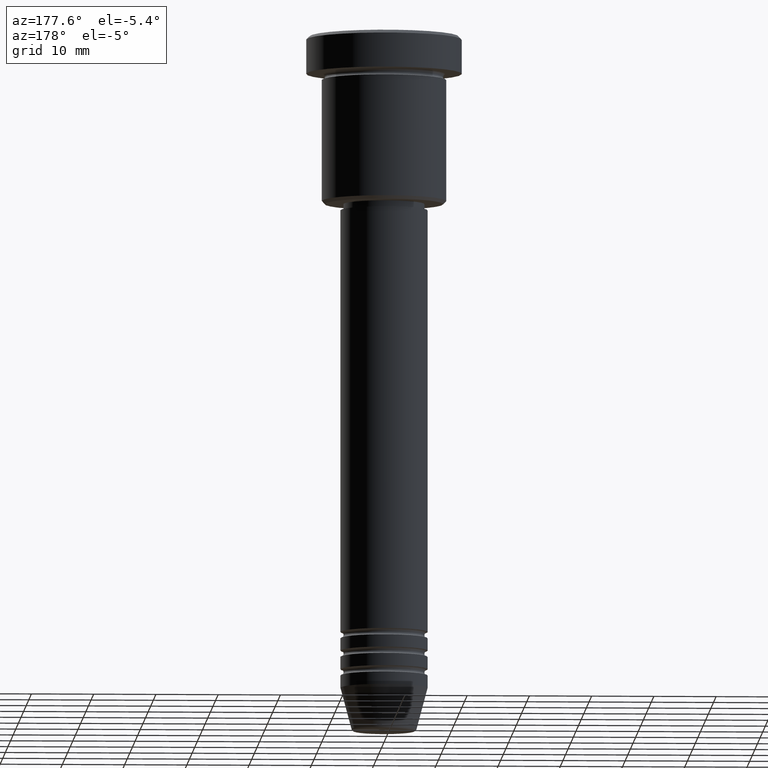
[diagram: clean part render]
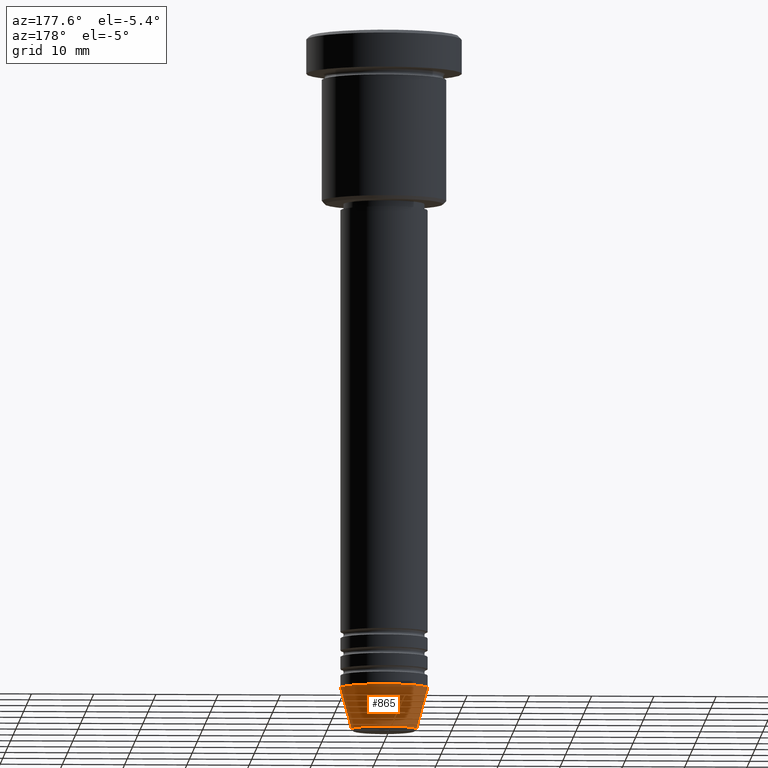
[diagram: same view with one face highlighted and labeled with its STEP entity id]
A machine part, auxiliary view. The second image highlights one B-rep face of the part: STEP entity #865.
In plain terms, the highlighted conical surface has half-angle 15 deg.
Its self-contained STEP definition (entity closure, byte-faithful):
#100 = AXIS2_PLACEMENT_3D ( 'NONE', #1119, #919, #477 ) ;
#118 = AXIS2_PLACEMENT_3D ( 'NONE', #1040, #226, #593 ) ;
#129 = ORIENTED_EDGE ( 'NONE', *, *, #837, .F. ) ;
#167 = CIRCLE ( 'NONE', #100, 5.223655072137193045 ) ;
#173 = CARTESIAN_POINT ( 'NONE',  ( -5.223655072137193045, 7.484830028987060174E-16, -111.6294095225512564 ) ) ;
#179 = FACE_OUTER_BOUND ( 'NONE', #1110, .T. ) ;
#226 = DIRECTION ( 'NONE',  ( -0.000000000000000000, -0.000000000000000000, 1.000000000000000000 ) ) ;
#251 = LINE ( 'NONE', #1000, #299 ) ;
#267 = DIRECTION ( 'NONE',  ( 1.000000000000000000, 0.000000000000000000, 0.000000000000000000 ) ) ;
#299 = VECTOR ( 'NONE', #615, 1000.000000000000000 ) ;
#322 = EDGE_CURVE ( 'NONE', #908, #1146, #167, .T. ) ;
#326 = LINE ( 'NONE', #511, #582 ) ;
#477 = DIRECTION ( 'NONE',  ( 1.000000000000000000, 0.000000000000000000, 0.000000000000000000 ) ) ;
#511 = CARTESIAN_POINT ( 'NONE',  ( -7.000000000000000000, 8.572527594031473190E-16, -105.0000000000000142 ) ) ;
#520 = ORIENTED_EDGE ( 'NONE', *, *, #1100, .F. ) ;
#568 = EDGE_CURVE ( 'NONE', #1146, #1063, #326, .T. ) ;
#582 = VECTOR ( 'NONE', #761, 1000.000000000000000 ) ;
#593 = DIRECTION ( 'NONE',  ( 1.000000000000000000, 0.000000000000000000, 0.000000000000000000 ) ) ;
#615 = DIRECTION ( 'NONE',  ( 0.2588190451025213501, 0.000000000000000000, 0.9659258262890680902 ) ) ;
#651 = ORIENTED_EDGE ( 'NONE', *, *, #322, .T. ) ;
#654 = AXIS2_PLACEMENT_3D ( 'NONE', #911, #1166, #267 ) ;
#664 = CARTESIAN_POINT ( 'NONE',  ( -7.000000000000000000, 8.572527594031473190E-16, -105.0000000000000142 ) ) ;
#747 = ORIENTED_EDGE ( 'NONE', *, *, #568, .T. ) ;
#761 = DIRECTION ( 'NONE',  ( -0.2588190451025213501, 3.169619151431772337E-17, 0.9659258262890680902 ) ) ;
#765 = VERTEX_POINT ( 'NONE', #1174 ) ;
#837 = EDGE_CURVE ( 'NONE', #908, #765, #251, .T. ) ;
#865 = ADVANCED_FACE ( 'NONE', ( #179 ), #1152, .T. ) ;
#908 = VERTEX_POINT ( 'NONE', #1112 ) ;
#911 = CARTESIAN_POINT ( 'NONE',  ( 0.000000000000000000, 0.000000000000000000, -105.0000000000000142 ) ) ;
#919 = DIRECTION ( 'NONE',  ( -0.000000000000000000, -0.000000000000000000, 1.000000000000000000 ) ) ;
#940 = CIRCLE ( 'NONE', #118, 7.000000000000000000 ) ;
#1000 = CARTESIAN_POINT ( 'NONE',  ( 7.000000000000000000, 0.000000000000000000, -105.0000000000000142 ) ) ;
#1040 = CARTESIAN_POINT ( 'NONE',  ( 0.000000000000000000, 0.000000000000000000, -105.0000000000000142 ) ) ;
#1063 = VERTEX_POINT ( 'NONE', #664 ) ;
#1100 = EDGE_CURVE ( 'NONE', #765, #1063, #940, .T. ) ;
#1110 = EDGE_LOOP ( 'NONE', ( #651, #747, #520, #129 ) ) ;
#1112 = CARTESIAN_POINT ( 'NONE',  ( 5.223655072137193045, 0.000000000000000000, -111.6294095225512564 ) ) ;
#1119 = CARTESIAN_POINT ( 'NONE',  ( 0.000000000000000000, 0.000000000000000000, -111.6294095225512564 ) ) ;
#1146 = VERTEX_POINT ( 'NONE', #173 ) ;
#1152 = CONICAL_SURFACE ( 'NONE', #654, 7.000000000000000000, 0.2617993877991500740 ) ;
#1166 = DIRECTION ( 'NONE',  ( -0.000000000000000000, -0.000000000000000000, 1.000000000000000000 ) ) ;
#1174 = CARTESIAN_POINT ( 'NONE',  ( 7.000000000000000000, 0.000000000000000000, -105.0000000000000142 ) ) ;